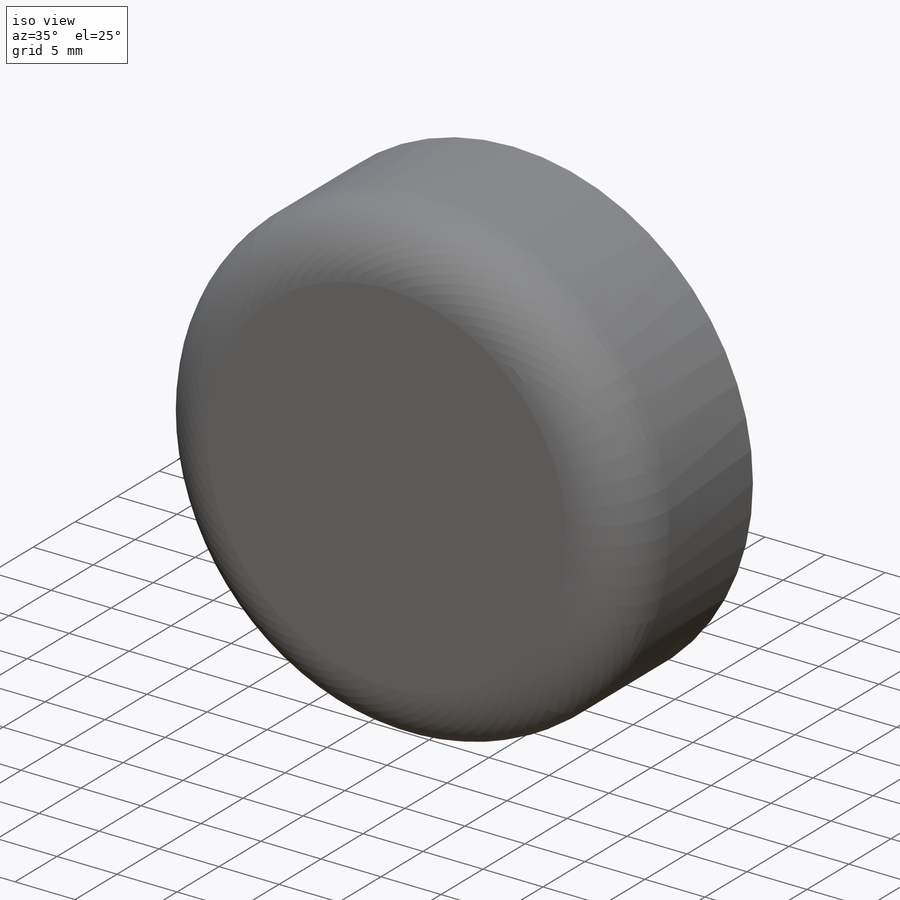
[diagram: iso view]
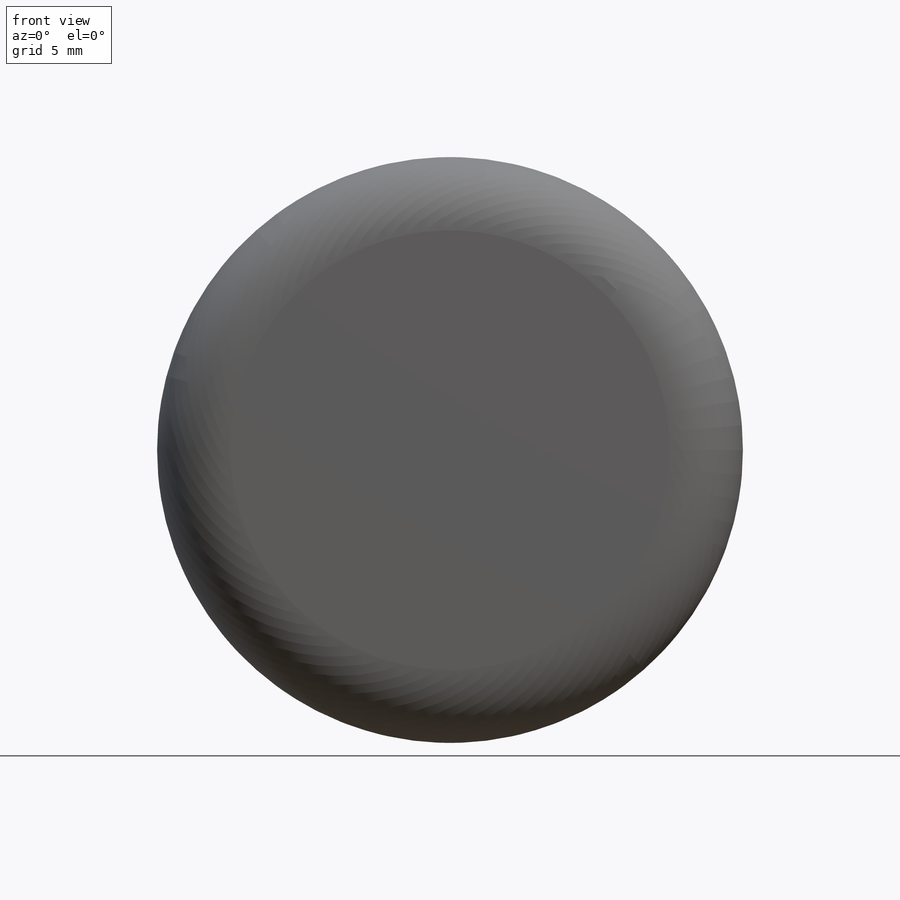
[diagram: front view]
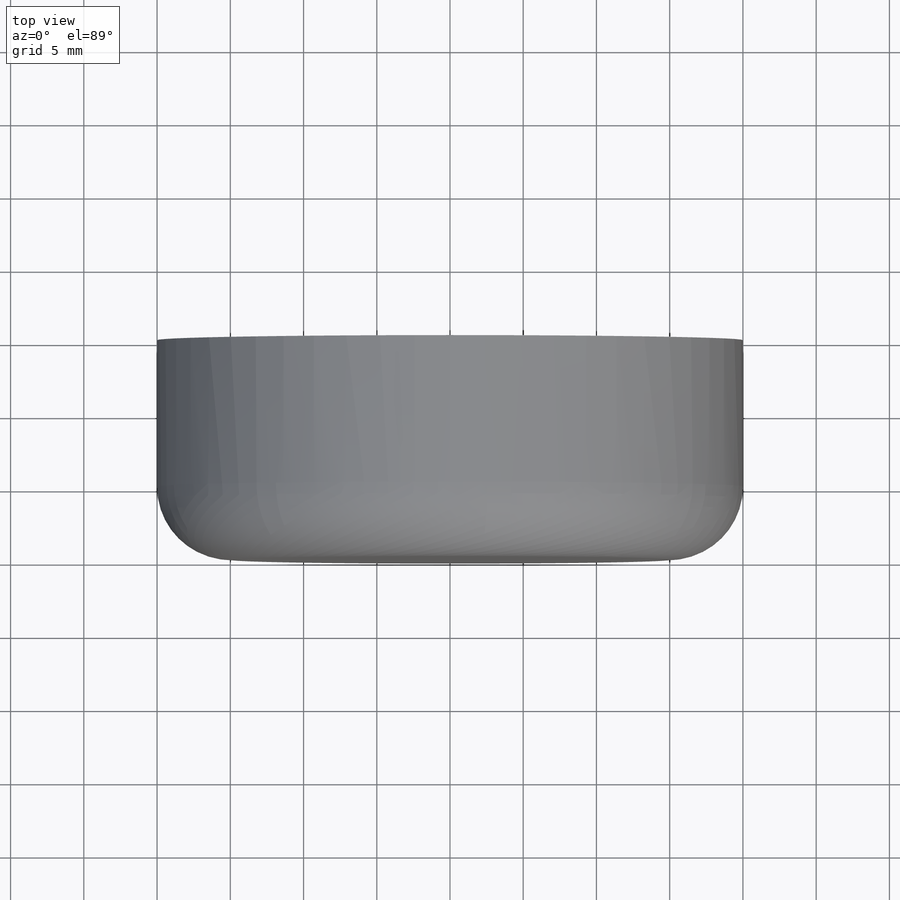
[diagram: top view]
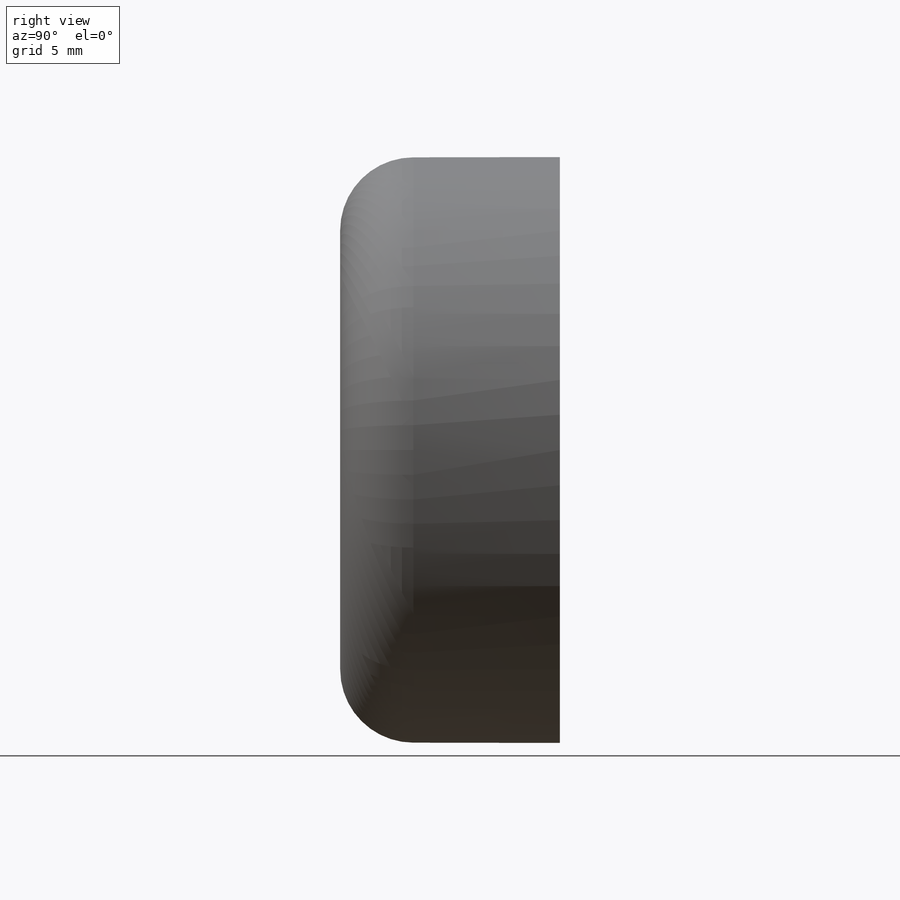
[diagram: right view]
SOLIDWORKS PART (.sldprt)
format: sldprt  version: not decoded by parser v0  size: 292,352 bytes
history: native  units: mm
features: plane x3, sketch x3, cut_extrude x2, material x1, extrude x1, fillet x1 (+9 scaffold rows collapsed)
feature tree (20):
  scaffold x9  (default folders/planes/origin — collapsed)
  material  "Material <nicht festgelegt>"
  plane  "Ebene vorne"
  plane  "Ebene oben"
  plane  "Ebene rechts"
  sketch  "Skizze1"  dims[D1=40.0mm]
  extrude  "Aufsatz-Linear austragen1"  Depth=15mm
  fillet  "Verrundung1"  Radius=5mm
  sketch  "Skizze2"  dims[D1=10.0mm D2=25.0mm]
  cut_extrude  "Schnitt-Linear austragen1"  Depth=10mm
  sketch  "Skizze3"  dims[D1=2.5mm D2=13.0mm]
  cut_extrude  "Schnitt-Linear austragen2"  Depth=5mm
decode coverage: 7 of 7 modeling features carry decoded parameters
note: suppression state not decoded; provenance and decode notes live in map.json
